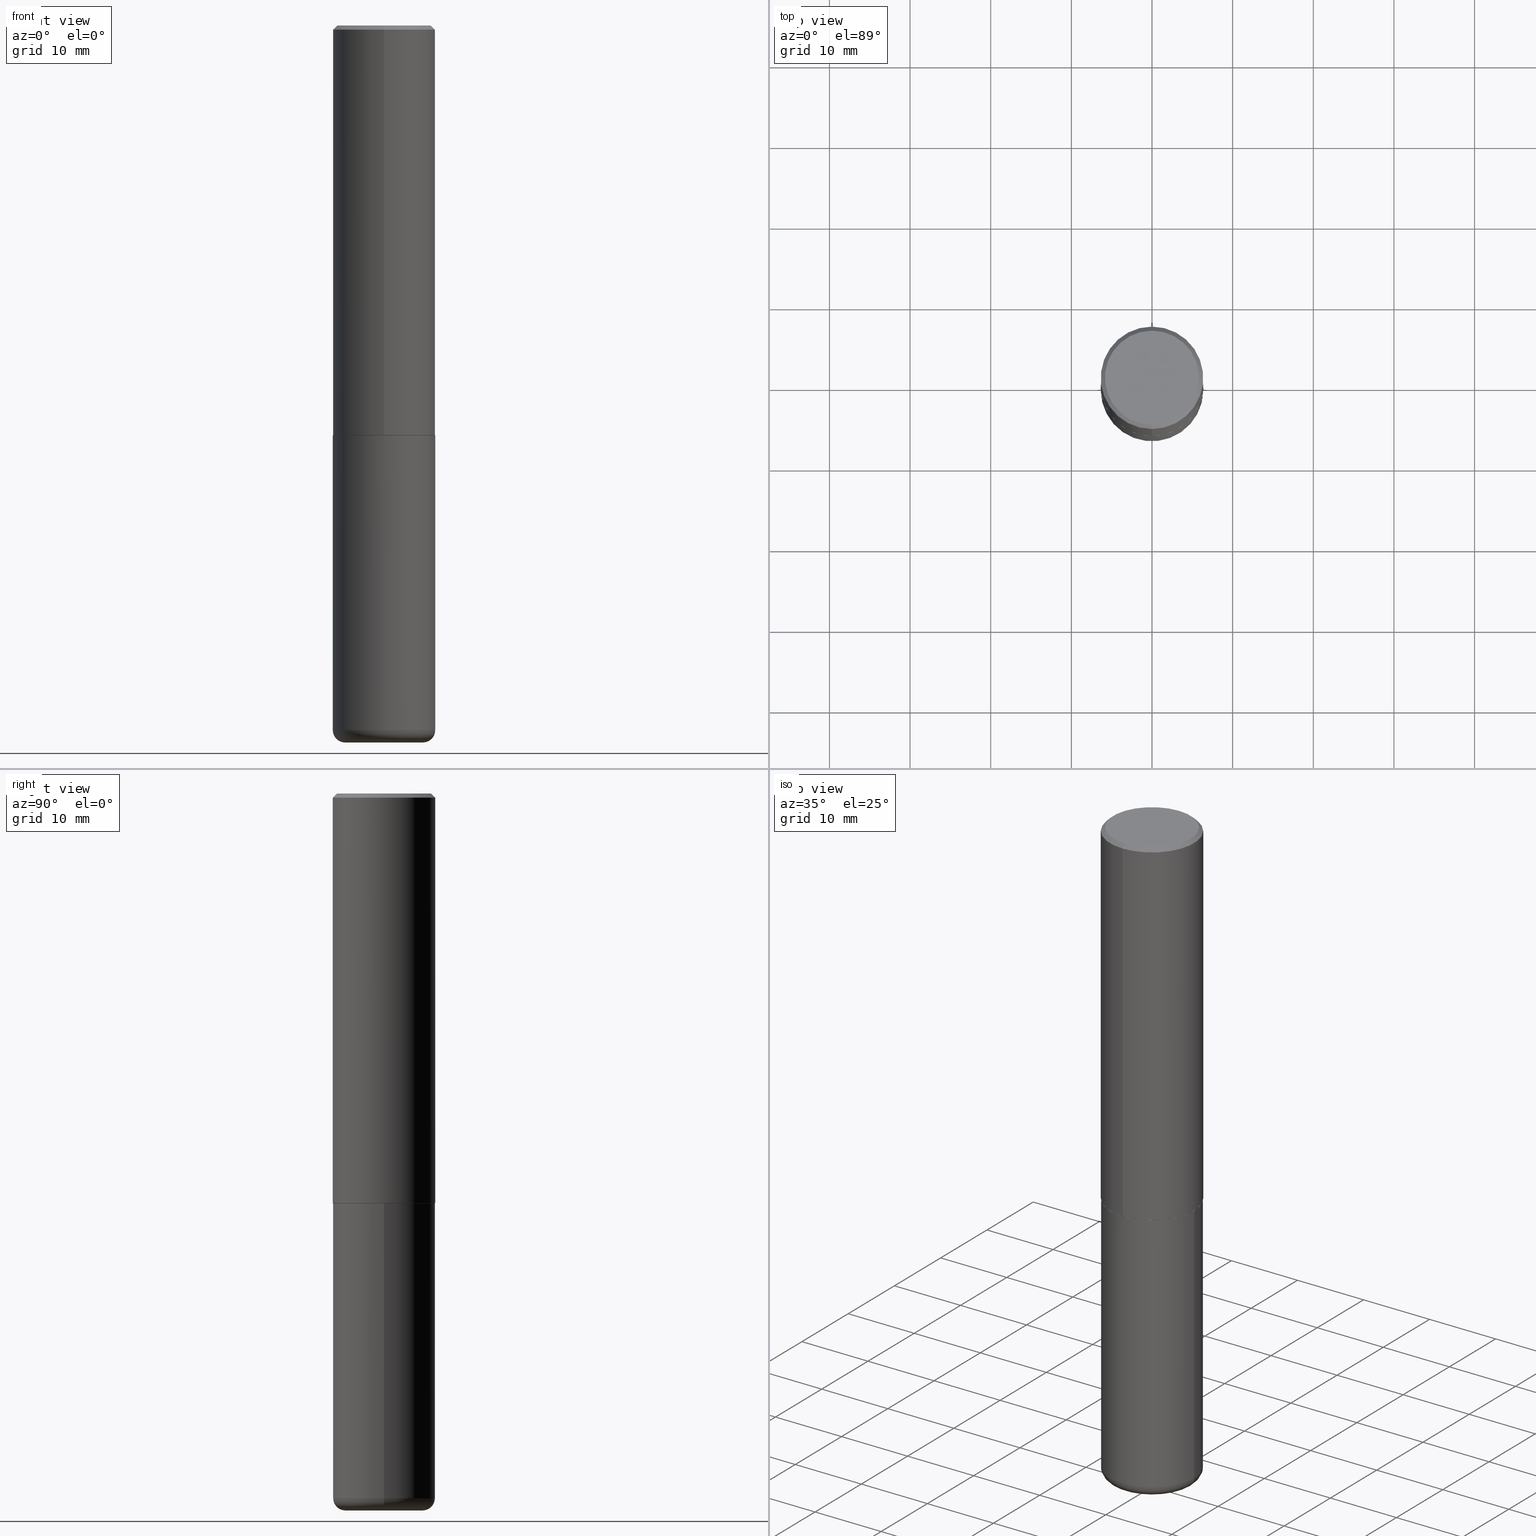
[diagram: canonical four-view strip — front | top / right | iso, engineering-drawing reading convention]
A machine part, canonical four-view strip (front | top / right | iso — engineering-drawing reading convention). The complete STEP part file that produces these views, byte-faithful:
ISO-10303-21;
HEADER;
FILE_DESCRIPTION (( 'STEP AP203' ),
    '1' );
FILE_NAME ('77360.STEP',
    '2024-05-02T19:32:08',
    ( '' ),
    ( '' ),
    'SwSTEP 2.0',
    'SolidWorks 2023',
    '' );
FILE_SCHEMA (( 'CONFIG_CONTROL_DESIGN' ));
ENDSEC;

DATA;
#1 = APPROVAL_PERSON_ORGANIZATION ( #222, #182, #349 ) ;
#2 = DIRECTION ( 'NONE',  ( -2.445468806185136597E-29, 3.491481338843145583E-15, 1.000000000000000000 ) ) ;
#3 = ADVANCED_BREP_SHAPE_REPRESENTATION ( '77360', ( #314, #179, #84 ), #255 ) ;
#4 = PERSON_AND_ORGANIZATION ( #276, #137 ) ;
#5 = AXIS2_PLACEMENT_3D ( 'NONE', #240, #331, #376 ) ;
#6 = DIMENSIONAL_EXPONENTS ( 1.000000000000000000, 0.000000000000000000, 0.000000000000000000, 0.000000000000000000, 0.000000000000000000, 0.000000000000000000, 0.000000000000000000 ) ;
#7 = ORIENTED_EDGE ( 'NONE', *, *, #133, .T. ) ;
#8 = DIRECTION ( 'NONE',  ( -2.445468806185136597E-29, 3.491481338843145583E-15, 1.000000000000000000 ) ) ;
#9 = PLANE ( 'NONE',  #116 ) ;
#10 = DATE_AND_TIME ( #35, #54 ) ;
#11 = CARTESIAN_POINT ( 'NONE',  ( 4.888157982744373443E-31, -6.986943265517335816E-17, -0.02000000000000009062 ) ) ;
#12 = ADVANCED_FACE ( 'NONE', ( #329 ), #46, .T. ) ;
#13 = CIRCLE ( 'NONE', #248, 0.2500000000000002776 ) ;
#14 = VERTEX_POINT ( 'NONE', #40 ) ;
#15 = CARTESIAN_POINT ( 'NONE',  ( 4.888157982744351127E-29, -6.986943265517304311E-15, -2.000000000000000000 ) ) ;
#16 = ORIENTED_EDGE ( 'NONE', *, *, #169, .F. ) ;
#17 = DIRECTION ( 'NONE',  ( -2.444078991372175563E-29, 3.493471632758652550E-15, 1.000000000000000000 ) ) ;
#18 = FACE_OUTER_BOUND ( 'NONE', #100, .T. ) ;
#19 = EDGE_LOOP ( 'NONE', ( #135, #245, #7, #147 ) ) ;
#20 = CARTESIAN_POINT ( 'NONE',  ( 4.885713903752978284E-29, -6.983449793884546288E-15, -1.998999999999999888 ) ) ;
#21 = EDGE_CURVE ( 'NONE', #403, #339, #302, .T. ) ;
#22 = LINE ( 'NONE', #407, #408 ) ;
#23 = CC_DESIGN_APPROVAL ( #281, ( #188 ) ) ;
#24 = AXIS2_PLACEMENT_3D ( 'NONE', #283, #124, #367 ) ;
#25 = CARTESIAN_POINT ( 'NONE',  ( 4.890937612370273194E-29, -6.982962677686291165E-15, -2.000000000000000000 ) ) ;
#26 = CARTESIAN_POINT ( 'NONE',  ( 4.888157982744351127E-29, -6.986943265517304311E-15, -2.000000000000000000 ) ) ;
#27 = DIRECTION ( 'NONE',  ( -2.445468806185136597E-29, 3.491481338843145583E-15, 1.000000000000000000 ) ) ;
#28 = PERSON_AND_ORGANIZATION ( #276, #137 ) ;
#29 = DIRECTION ( 'NONE',  ( -4.937700262165053702E-15, -0.7071067811866175168, 0.7071067811864775177 ) ) ;
#30 = DATE_AND_TIME ( #359, #309 ) ;
#31 = CARTESIAN_POINT ( 'NONE',  ( 8.559140821647976968E-29, -1.222018468595100934E-14, -3.500000000000000000 ) ) ;
#32 = APPROVAL_STATUS ( 'not_yet_approved' ) ;
#33 = AXIS2_PLACEMENT_3D ( 'NONE', #305, #68, #320 ) ;
#34 = DIRECTION ( 'NONE',  ( 1.000000000000000000, -6.982962677686273021E-15, 0.000000000000000000 ) ) ;
#35 = CALENDAR_DATE ( 2024, 2, 5 ) ;
#36 = ADVANCED_FACE ( 'NONE', ( #364 ), #80, .T. ) ;
#37 = AXIS2_PLACEMENT_3D ( 'NONE', #340, #184, #63 ) ;
#38 = ADVANCED_FACE ( 'NONE', ( #127 ), #208, .T. ) ;
#39 = ORIENTED_EDGE ( 'NONE', *, *, #235, .T. ) ;
#40 = CARTESIAN_POINT ( 'NONE',  ( 1.776356839400276103E-15, 0.2499999999999932832, -1.999000000000000776 ) ) ;
#41 = ORIENTED_EDGE ( 'NONE', *, *, #356, .T. ) ;
#42 = DIRECTION ( 'NONE',  ( -2.445468806185136597E-29, 3.491481338843145583E-15, 1.000000000000000000 ) ) ;
#43 = AXIS2_PLACEMENT_3D ( 'NONE', #88, #237, #300 ) ;
#44 = AXIS2_PLACEMENT_3D ( 'NONE', #200, #375, #322 ) ;
#45 = CARTESIAN_POINT ( 'NONE',  ( -0.1899999999999999745, -1.066066460767623105E-14, -3.439999999999999947 ) ) ;
#46 = PLANE ( 'NONE',  #83 ) ;
#47 = ORIENTED_EDGE ( 'NONE', *, *, #293, .T. ) ;
#48 = ORIENTED_EDGE ( 'NONE', *, *, #412, .T. ) ;
#49 = DESIGN_CONTEXT ( 'detailed design', #142, 'design' ) ;
#50 = EDGE_LOOP ( 'NONE', ( #227, #282, #206, #366 ) ) ;
#51 =( LENGTH_UNIT ( ) NAMED_UNIT ( * ) SI_UNIT ( $, .METRE. ) );
#52 = PLANE ( 'NONE',  #43 ) ;
#53 = AXIS2_PLACEMENT_3D ( 'NONE', #396, #42, #190 ) ;
#54 = LOCAL_TIME ( 15, 32, 8.000000000000000000, #224 ) ;
#55 = EDGE_CURVE ( 'NONE', #339, #403, #157, .T. ) ;
#56 = EDGE_LOOP ( 'NONE', ( #393, #154, #317, #214 ) ) ;
#57 = FACE_OUTER_BOUND ( 'NONE', #180, .T. ) ;
#58 = DIRECTION ( 'NONE',  ( -2.444078991372175563E-29, 3.493471632758652550E-15, 1.000000000000000000 ) ) ;
#59 = EDGE_LOOP ( 'NONE', ( #357, #399, #163, #373 ) ) ;
#60 = DIRECTION ( 'NONE',  ( -6.982962677686265922E-15, -1.000000000000000000, 3.278217592397112312E-15 ) ) ;
#61 = DIRECTION ( 'NONE',  ( -2.444078991372175563E-29, 3.493471632758652550E-15, 1.000000000000000000 ) ) ;
#62 = ADVANCED_FACE ( 'NONE', ( #387 ), #341, .T. ) ;
#63 = DIRECTION ( 'NONE',  ( 1.000000000000000000, -6.982962677686274599E-15, 0.000000000000000000 ) ) ;
#64 = DIRECTION ( 'NONE',  ( 1.000000000000000000, -6.982962677686265133E-15, 4.883557194083112340E-29 ) ) ;
#65 = CC_DESIGN_APPROVAL ( #182, ( #368 ) ) ;
#66 = APPROVAL_PERSON_ORGANIZATION ( #73, #281, #416 ) ;
#67 = ORIENTED_EDGE ( 'NONE', *, *, #133, .F. ) ;
#68 = DIRECTION ( 'NONE',  ( -2.444078991372175563E-29, 3.493471632758652550E-15, 1.000000000000000000 ) ) ;
#69 = EDGE_CURVE ( 'NONE', #139, #110, #390, .T. ) ;
#70 = APPROVAL_STATUS ( 'not_yet_approved' ) ;
#71 = APPLICATION_PROTOCOL_DEFINITION ( 'international standard', 'config_control_design', 1994, #142 ) ;
#72 = CARTESIAN_POINT ( 'NONE',  ( 0.000000000000000000, 0.000000000000000000, 0.000000000000000000 ) ) ;
#73 = PERSON_AND_ORGANIZATION ( #276, #137 ) ;
#74 = PERSON_AND_ORGANIZATION_ROLE ( 'creator' ) ;
#75 = ORIENTED_EDGE ( 'NONE', *, *, #175, .F. ) ;
#76 = AXIS2_PLACEMENT_3D ( 'NONE', #381, #209, #277 ) ;
#77 = ADVANCED_FACE ( 'NONE', ( #221 ), #334, .T. ) ;
#78 = CC_DESIGN_PERSON_AND_ORGANIZATION_ASSIGNMENT ( #4, #287, ( #136 ) ) ;
#79 = DIRECTION ( 'NONE',  ( 1.000000000000000000, -6.982962677686273021E-15, 0.000000000000000000 ) ) ;
#80 = CYLINDRICAL_SURFACE ( 'NONE', #44, 0.2500000000000000000 ) ;
#81 = DIRECTION ( 'NONE',  ( 2.444078991372175563E-29, -3.493471632758652550E-15, -1.000000000000000000 ) ) ;
#82 = CIRCLE ( 'NONE', #37, 0.05999999999999994227 ) ;
#83 = AXIS2_PLACEMENT_3D ( 'NONE', #177, #392, #394 ) ;
#84 = AXIS2_PLACEMENT_3D ( 'NONE', #284, #278, #99 ) ;
#85 = DIRECTION ( 'NONE',  ( 1.000000000000000000, -6.982962677686266711E-15, 4.876176775795935793E-29 ) ) ;
#86 = CARTESIAN_POINT ( 'NONE',  ( -7.626972843823584403E-45, 1.090169890898625670E-30, 3.120591793778966343E-16 ) ) ;
#87 = CARTESIAN_POINT ( 'NONE',  ( 1.675911042644703182E-15, 0.2299999999999997047, -4.914392961565924424E-16 ) ) ;
#88 = CARTESIAN_POINT ( 'NONE',  ( 4.888157982744351127E-29, -6.986943265517304311E-15, -2.000000000000000000 ) ) ;
#89 = LINE ( 'NONE', #153, #174 ) ;
#90 = ORIENTED_EDGE ( 'NONE', *, *, #55, .T. ) ;
#91 = DIRECTION ( 'NONE',  ( -2.444078991372175563E-29, 3.493471632758652550E-15, 1.000000000000000000 ) ) ;
#92 = DIRECTION ( 'NONE',  ( -6.982962677686265133E-15, -1.000000000000000000, 3.291383124896702687E-15 ) ) ;
#93 = PERSON_AND_ORGANIZATION_ROLE ( 'classification_officer' ) ;
#94 = ORIENTED_EDGE ( 'NONE', *, *, #201, .T. ) ;
#95 = CARTESIAN_POINT ( 'NONE',  ( -0.2499999999999999722, -1.023433896622016898E-14, -3.439999999999999947 ) ) ;
#96 = CIRCLE ( 'NONE', #354, 0.2489999999999999991 ) ;
#97 = EDGE_CURVE ( 'NONE', #290, #204, #350, .T. ) ;
#98 = DATE_AND_TIME ( #316, #253 ) ;
#99 = DIRECTION ( 'NONE',  ( 1.000000000000000000, 0.000000000000000000, 0.000000000000000000 ) ) ;
#100 = EDGE_LOOP ( 'NONE', ( #258, #90, #296, #417 ) ) ;
#101 = DIRECTION ( 'NONE',  ( 1.000000000000000000, -6.982962677686270655E-15, 0.000000000000000000 ) ) ;
#102 = LENGTH_MEASURE_WITH_UNIT ( LENGTH_MEASURE( 0.02539999999999999897 ), #51 );
#103 = CARTESIAN_POINT ( 'NONE',  ( 8.412412693276869938E-29, -1.201069580562042103E-14, -3.439999999999999947 ) ) ;
#104 = AXIS2_PLACEMENT_3D ( 'NONE', #86, #17, #152 ) ;
#105 = CALENDAR_DATE ( 2024, 2, 5 ) ;
#106 = AXIS2_PLACEMENT_3D ( 'NONE', #15, #155, #149 ) ;
#107 = ORIENTED_EDGE ( 'NONE', *, *, #97, .T. ) ;
#108 = DIRECTION ( 'NONE',  ( -2.444078991372175563E-29, 3.493471632758652550E-15, 1.000000000000000000 ) ) ;
#109 = PRODUCT_DEFINITION_SHAPE ( 'NONE', 'NONE',  #188 ) ;
#110 = VERTEX_POINT ( 'NONE', #318 ) ;
#111 = ORIENTED_EDGE ( 'NONE', *, *, #55, .F. ) ;
#112 = AXIS2_PLACEMENT_3D ( 'NONE', #346, #61, #187 ) ;
#113 = VERTEX_POINT ( 'NONE', #164 ) ;
#114 = LINE ( 'NONE', #115, #275 ) ;
#115 = CARTESIAN_POINT ( 'NONE',  ( 1.745740669421567269E-15, 0.2499999999999999722, -0.02000000000000096492 ) ) ;
#116 = AXIS2_PLACEMENT_3D ( 'NONE', #126, #246, #212 ) ;
#117 = AXIS2_PLACEMENT_3D ( 'NONE', #72, #108, #257 ) ;
#118 = DIRECTION ( 'NONE',  ( -2.444078991372175563E-29, 3.493471632758652550E-15, 1.000000000000000000 ) ) ;
#119 = EDGE_CURVE ( 'NONE', #110, #139, #203, .T. ) ;
#120 = EDGE_CURVE ( 'NONE', #251, #345, #254, .T. ) ;
#121 = DIRECTION ( 'NONE',  ( 1.000000000000000000, -6.982962677686266711E-15, 0.000000000000000000 ) ) ;
#122 = DIRECTION ( 'NONE',  ( -6.982962677686266711E-15, -1.000000000000000000, 3.493471632758652550E-15 ) ) ;
#123 = CARTESIAN_POINT ( 'NONE',  ( 4.890937612370273194E-29, -6.982962677686291165E-15, -2.000000000000000000 ) ) ;
#124 = DIRECTION ( 'NONE',  ( -2.445468806185136597E-29, 3.491481338843145583E-15, 1.000000000000000000 ) ) ;
#125 = APPROVAL_ROLE ( '' ) ;
#126 = CARTESIAN_POINT ( 'NONE',  ( 1.606081415867839095E-15, 0.2299999999999997047, -6.474688858455407103E-16 ) ) ;
#127 = FACE_OUTER_BOUND ( 'NONE', #410, .T. ) ;
#128 = DATE_TIME_ROLE ( 'creation_date' ) ;
#129 =( CONVERSION_BASED_UNIT ( 'INCH', #102 ) LENGTH_UNIT ( ) NAMED_UNIT ( #6 ) );
#130 = CARTESIAN_POINT ( 'NONE',  ( 8.412412693276869938E-29, -1.201069580562042103E-14, -3.439999999999999947 ) ) ;
#131 = COORDINATED_UNIVERSAL_TIME_OFFSET ( 5, 0, .BEHIND. ) ;
#132 = ADVANCED_FACE ( 'NONE', ( #229 ), #347, .T. ) ;
#133 = EDGE_CURVE ( 'NONE', #220, #345, #114, .T. ) ;
#134 = CALENDAR_DATE ( 2024, 2, 5 ) ;
#135 = ORIENTED_EDGE ( 'NONE', *, *, #356, .F. ) ;
#136 = PRODUCT_DEFINITION_FORMATION_WITH_SPECIFIED_SOURCE ( 'ANY', '', #336, .NOT_KNOWN. ) ;
#137 = ORGANIZATION ( 'UNSPECIFIED', 'UNSPECIFIED', '' ) ;
#138 = CC_DESIGN_DATE_AND_TIME_ASSIGNMENT ( #30, #128, ( #188 ) ) ;
#139 = VERTEX_POINT ( 'NONE', #95 ) ;
#140 = ORIENTED_EDGE ( 'NONE', *, *, #191, .F. ) ;
#141 = AXIS2_PLACEMENT_3D ( 'NONE', #103, #384, #161 ) ;
#142 = APPLICATION_CONTEXT ( 'configuration controlled 3d designs of mechanical parts and assemblies' ) ;
#143 = FACE_OUTER_BOUND ( 'NONE', #165, .T. ) ;
#144 = ADVANCED_FACE ( 'NONE', ( #145 ), #171, .T. ) ;
#145 = FACE_OUTER_BOUND ( 'NONE', #210, .T. ) ;
#146 = VECTOR ( 'NONE', #310, 39.37007874015748143 ) ;
#147 = ORIENTED_EDGE ( 'NONE', *, *, #150, .T. ) ;
#148 = CARTESIAN_POINT ( 'NONE',  ( -0.2500000000000000000, 1.776356839400250465E-15, -1.229733772563726445E-29 ) ) ;
#149 = DIRECTION ( 'NONE',  ( -6.982962677686265133E-15, -1.000000000000000000, 3.291383124896702687E-15 ) ) ;
#150 = EDGE_CURVE ( 'NONE', #345, #251, #301, .T. ) ;
#151 = ORIENTED_EDGE ( 'NONE', *, *, #191, .T. ) ;
#152 = DIRECTION ( 'NONE',  ( -6.982962677686265922E-15, -1.000000000000000000, 3.493471632758652550E-15 ) ) ;
#153 = CARTESIAN_POINT ( 'NONE',  ( 1.769251412042697971E-15, 0.2489999999999930047, -2.000000000000000888 ) ) ;
#154 = ORIENTED_EDGE ( 'NONE', *, *, #199, .T. ) ;
#155 = DIRECTION ( 'NONE',  ( -2.444078991372175563E-29, 3.493471632758652550E-15, 1.000000000000000000 ) ) ;
#156 = DIRECTION ( 'NONE',  ( -2.444078991372175563E-29, 3.493471632758652550E-15, 1.000000000000000000 ) ) ;
#157 = CIRCLE ( 'NONE', #259, 0.1899999999999999745 ) ;
#158 = CC_DESIGN_PERSON_AND_ORGANIZATION_ASSIGNMENT ( #352, #218, ( #336 ) ) ;
#159 = CYLINDRICAL_SURFACE ( 'NONE', #335, 0.2500000000000000000 ) ;
#160 = CARTESIAN_POINT ( 'NONE',  ( -1.745740669421567467E-15, -0.2500000000000001110, 8.733679081896635319E-16 ) ) ;
#161 = DIRECTION ( 'NONE',  ( 1.000000000000000000, -6.982962677686265133E-15, 4.883557194083112340E-29 ) ) ;
#162 = SECURITY_CLASSIFICATION_LEVEL ( 'unclassified' ) ;
#163 = ORIENTED_EDGE ( 'NONE', *, *, #201, .F. ) ;
#164 = CARTESIAN_POINT ( 'NONE',  ( -0.2500000000000000000, -7.720472402253106025E-15, -2.000000000000000000 ) ) ;
#165 = EDGE_LOOP ( 'NONE', ( #263, #228, #39, #272 ) ) ;
#166 = DATE_AND_TIME ( #134, #398 ) ;
#167 = ORIENTED_EDGE ( 'NONE', *, *, #21, .F. ) ;
#168 =( NAMED_UNIT ( * ) PLANE_ANGLE_UNIT ( ) SI_UNIT ( $, .RADIAN. ) );
#169 = EDGE_CURVE ( 'NONE', #196, #290, #217, .T. ) ;
#170 = APPROVAL_DATE_TIME ( #10, #182 ) ;
#171 = CONICAL_SURFACE ( 'NONE', #348, 0.2500000000000000555, 0.7853981633974466137 ) ;
#172 = EDGE_LOOP ( 'NONE', ( #75, #16 ) ) ;
#173 = DIRECTION ( 'NONE',  ( -2.445468806185136597E-29, 3.491481338843145583E-15, 1.000000000000000000 ) ) ;
#174 = VECTOR ( 'NONE', #176, 39.37007874015748143 ) ;
#175 = EDGE_CURVE ( 'NONE', #290, #196, #96, .T. ) ;
#176 = DIRECTION ( 'NONE',  ( 5.024295867788576727E-15, 0.7071067811866224018, 0.7071067811864726327 ) ) ;
#177 = CARTESIAN_POINT ( 'NONE',  ( 8.559140821647976968E-29, -1.222018468595100934E-14, -3.500000000000000000 ) ) ;
#178 = ORIENTED_EDGE ( 'NONE', *, *, #230, .F. ) ;
#179 = MANIFOLD_SOLID_BREP ( 'Body-Move/Copy2[2]', #226 ) ;
#180 = EDGE_LOOP ( 'NONE', ( #264, #232, #299, #326 ) ) ;
#181 = VECTOR ( 'NONE', #268, 39.37007874015748143 ) ;
#182 = APPROVAL ( #355, 'UNSPECIFIED' ) ;
#183 = CARTESIAN_POINT ( 'NONE',  ( -1.646519519465166376E-15, -0.2299999999999997047, 1.115557654912385711E-15 ) ) ;
#184 = DIRECTION ( 'NONE',  ( -6.982962677686266711E-15, -1.000000000000000000, 3.491481338843145583E-15 ) ) ;
#185 = DIRECTION ( 'NONE',  ( -2.444078991372175563E-29, 3.493471632758652550E-15, 1.000000000000000000 ) ) ;
#186 = CARTESIAN_POINT ( 'NONE',  ( 1.745740669421567269E-15, 0.2499999999999999722, -0.02000000000000096492 ) ) ;
#187 = DIRECTION ( 'NONE',  ( -6.982962677686265922E-15, -1.000000000000000000, 3.278217592397112312E-15 ) ) ;
#188 = PRODUCT_DEFINITION ( 'UNKNOWN', '', #136, #49 ) ;
#189 = VECTOR ( 'NONE', #91, 39.37007874015748143 ) ;
#190 = DIRECTION ( 'NONE',  ( 1.000000000000000000, -6.982962677686266711E-15, 0.000000000000000000 ) ) ;
#191 = EDGE_CURVE ( 'NONE', #372, #220, #388, .T. ) ;
#192 = APPLICATION_PROTOCOL_DEFINITION ( 'international standard', 'config_control_design', 1994, #256 ) ;
#193 = CARTESIAN_POINT ( 'NONE',  ( -1.738757706743831360E-15, -0.2490000000000069935, -1.999999999999999112 ) ) ;
#194 = APPROVAL_DATE_TIME ( #98, #281 ) ;
#195 = APPROVAL_DATE_TIME ( #166, #241 ) ;
#196 = VERTEX_POINT ( 'NONE', #261 ) ;
#197 = VECTOR ( 'NONE', #211, 39.37007874015748854 ) ;
#198 = ORIENTED_EDGE ( 'NONE', *, *, #120, .F. ) ;
#199 = EDGE_CURVE ( 'NONE', #339, #139, #311, .T. ) ;
#200 = CARTESIAN_POINT ( 'NONE',  ( 0.000000000000000000, 0.000000000000000000, 0.000000000000000000 ) ) ;
#201 = EDGE_CURVE ( 'NONE', #337, #113, #231, .T. ) ;
#202 = DIRECTION ( 'NONE',  ( 6.982962677686265133E-15, 1.000000000000000000, -3.500180241882336472E-15 ) ) ;
#203 = CIRCLE ( 'NONE', #24, 0.2500000000000000000 ) ;
#204 = VERTEX_POINT ( 'NONE', #312 ) ;
#205 = CC_DESIGN_PERSON_AND_ORGANIZATION_ASSIGNMENT ( #351, #93, ( #368 ) ) ;
#206 = ORIENTED_EDGE ( 'NONE', *, *, #239, .T. ) ;
#207 = DIRECTION ( 'NONE',  ( -1.000000000000000000, 6.982962677686265922E-15, -4.876176775795935793E-29 ) ) ;
#208 = CONICAL_SURFACE ( 'NONE', #33, 0.2489999999999999991, 0.7853981633975507526 ) ;
#209 = DIRECTION ( 'NONE',  ( -2.444078991372175563E-29, 3.493471632758652550E-15, 1.000000000000000000 ) ) ;
#210 = EDGE_LOOP ( 'NONE', ( #140, #41, #380, #67 ) ) ;
#211 = DIRECTION ( 'NONE',  ( -4.851104656540954809E-15, -0.7071067811865486830, -0.7071067811865462405 ) ) ;
#212 = DIRECTION ( 'NONE',  ( 6.982962677686265922E-15, 1.000000000000000000, -3.493471632758652550E-15 ) ) ;
#213 = ADVANCED_FACE ( 'NONE', ( #18 ), #361, .T. ) ;
#214 = ORIENTED_EDGE ( 'NONE', *, *, #323, .F. ) ;
#215 = DIRECTION ( 'NONE',  ( 2.438088387897960049E-29, -3.491481338843145188E-15, -1.000000000000000000 ) ) ;
#216 = LINE ( 'NONE', #160, #181 ) ;
#217 = CIRCLE ( 'NONE', #5, 0.2489999999999999991 ) ;
#218 = PERSON_AND_ORGANIZATION_ROLE ( 'design_owner' ) ;
#219 = MECHANICAL_CONTEXT ( 'NONE', #256, 'mechanical' ) ;
#220 = VERTEX_POINT ( 'NONE', #87 ) ;
#221 = FACE_OUTER_BOUND ( 'NONE', #19, .T. ) ;
#222 = PERSON_AND_ORGANIZATION ( #276, #137 ) ;
#223 = AXIS2_PLACEMENT_3D ( 'NONE', #123, #404, #121 ) ;
#224 = COORDINATED_UNIVERSAL_TIME_OFFSET ( 5, 0, .BEHIND. ) ;
#225 = AXIS2_PLACEMENT_3D ( 'NONE', #333, #185, #243 ) ;
#226 = CLOSED_SHELL ( 'NONE', ( #402, #132, #144, #77, #285, #38, #342, #269 ) ) ;
#227 = ORIENTED_EDGE ( 'NONE', *, *, #298, .F. ) ;
#228 = ORIENTED_EDGE ( 'NONE', *, *, #270, .T. ) ;
#229 = FACE_OUTER_BOUND ( 'NONE', #389, .T. ) ;
#230 = EDGE_CURVE ( 'NONE', #196, #14, #89, .T. ) ;
#231 = CIRCLE ( 'NONE', #53, 0.2500000000000000000 ) ;
#232 = ORIENTED_EDGE ( 'NONE', *, *, #230, .T. ) ;
#233 = FACE_OUTER_BOUND ( 'NONE', #50, .T. ) ;
#234 = CIRCLE ( 'NONE', #104, 0.2299999999999997047 ) ;
#235 = EDGE_CURVE ( 'NONE', #204, #251, #216, .T. ) ;
#236 = ORIENTED_EDGE ( 'NONE', *, *, #169, .T. ) ;
#237 = DIRECTION ( 'NONE',  ( -2.444078991372175283E-29, 3.493471632758652550E-15, 1.000000000000000000 ) ) ;
#238 = EDGE_LOOP ( 'NONE', ( #94, #386 ) ) ;
#239 = EDGE_CURVE ( 'NONE', #110, #337, #22, .T. ) ;
#240 = CARTESIAN_POINT ( 'NONE',  ( 4.888157982744351127E-29, -6.986943265517304311E-15, -2.000000000000000000 ) ) ;
#241 = APPROVAL ( #70, 'UNSPECIFIED' ) ;
#242 = LINE ( 'NONE', #401, #197 ) ;
#243 = DIRECTION ( 'NONE',  ( -6.982962677686265133E-15, -1.000000000000000000, 3.500180241882336472E-15 ) ) ;
#244 =( NAMED_UNIT ( * ) SI_UNIT ( $, .STERADIAN. ) SOLID_ANGLE_UNIT ( ) );
#245 = ORIENTED_EDGE ( 'NONE', *, *, #293, .F. ) ;
#246 = DIRECTION ( 'NONE',  ( 2.444078991372175283E-29, -3.493471632758652550E-15, -1.000000000000000000 ) ) ;
#247 = DIRECTION ( 'NONE',  ( 2.444078991372175563E-29, -3.493471632758652550E-15, -1.000000000000000000 ) ) ;
#248 = AXIS2_PLACEMENT_3D ( 'NONE', #20, #118, #60 ) ;
#249 = CC_DESIGN_DATE_AND_TIME_ASSIGNMENT ( #250, #385, ( #368 ) ) ;
#250 = DATE_AND_TIME ( #105, #409 ) ;
#251 = VERTEX_POINT ( 'NONE', #295 ) ;
#252 = PERSON_AND_ORGANIZATION_ROLE ( 'creator' ) ;
#253 = LOCAL_TIME ( 15, 32, 8.000000000000000000, #414 ) ;
#254 = CIRCLE ( 'NONE', #370, 0.2500000000000000555 ) ;
#255 =( GEOMETRIC_REPRESENTATION_CONTEXT ( 3 ) GLOBAL_UNCERTAINTY_ASSIGNED_CONTEXT ( ( #262 ) ) GLOBAL_UNIT_ASSIGNED_CONTEXT ( ( #129, #168, #244 ) ) REPRESENTATION_CONTEXT ( 'NONE', 'WORKASPACE' ) );
#256 = APPLICATION_CONTEXT ( 'configuration controlled 3d designs of mechanical parts and assemblies' ) ;
#257 = DIRECTION ( 'NONE',  ( -6.982962677686266711E-15, -1.000000000000000000, 3.493471632758652550E-15 ) ) ;
#258 = ORIENTED_EDGE ( 'NONE', *, *, #199, .F. ) ;
#259 = AXIS2_PLACEMENT_3D ( 'NONE', #31, #2, #34 ) ;
#260 = CYLINDRICAL_SURFACE ( 'NONE', #117, 0.2500000000000001110 ) ;
#261 = CARTESIAN_POINT ( 'NONE',  ( 1.772804125721499462E-15, 0.2489999999999930047, -2.000000000000000888 ) ) ;
#262 = UNCERTAINTY_MEASURE_WITH_UNIT (LENGTH_MEASURE( 1.000000000000000082E-05 ), #129, 'distance_accuracy_value', 'NONE');
#263 = ORIENTED_EDGE ( 'NONE', *, *, #412, .F. ) ;
#264 = ORIENTED_EDGE ( 'NONE', *, *, #175, .T. ) ;
#265 = AXIS2_PLACEMENT_3D ( 'NONE', #378, #58, #122 ) ;
#266 = FACE_OUTER_BOUND ( 'NONE', #238, .T. ) ;
#267 = FACE_OUTER_BOUND ( 'NONE', #172, .T. ) ;
#268 = DIRECTION ( 'NONE',  ( -2.444078991372175563E-29, 3.493471632758652550E-15, 1.000000000000000000 ) ) ;
#269 = ADVANCED_FACE ( 'NONE', ( #415 ), #9, .F. ) ;
#270 = EDGE_CURVE ( 'NONE', #14, #204, #286, .T. ) ;
#271 = CIRCLE ( 'NONE', #223, 0.2500000000000000000 ) ;
#272 = ORIENTED_EDGE ( 'NONE', *, *, #150, .F. ) ;
#273 = CARTESIAN_POINT ( 'NONE',  ( 0.1899999999999999745, -1.354694759471140096E-14, -3.500000000000000000 ) ) ;
#274 = VECTOR ( 'NONE', #29, 39.37007874015748143 ) ;
#275 = VECTOR ( 'NONE', #395, 39.37007874015748854 ) ;
#276 = PERSON ( 'UNSPECIFIED', 'UNSPECIFIED', 'UNSPECIFIED', ('UNSPECIFIED'), ('UNSPECIFIED'), ('UNSPECIFIED') ) ;
#277 = DIRECTION ( 'NONE',  ( -6.982962677686265922E-15, -1.000000000000000000, 3.493471632758652550E-15 ) ) ;
#278 = DIRECTION ( 'NONE',  ( 0.000000000000000000, 0.000000000000000000, 1.000000000000000000 ) ) ;
#279 = ORIENTED_EDGE ( 'NONE', *, *, #235, .F. ) ;
#280 = DIRECTION ( 'NONE',  ( -6.982962677686265133E-15, -1.000000000000000000, 3.500180241882336472E-15 ) ) ;
#281 = APPROVAL ( #32, 'UNSPECIFIED' ) ;
#282 = ORIENTED_EDGE ( 'NONE', *, *, #69, .T. ) ;
#283 = CARTESIAN_POINT ( 'NONE',  ( 8.412412693276869938E-29, -1.201069580562042103E-14, -3.439999999999999947 ) ) ;
#284 = CARTESIAN_POINT ( 'NONE',  ( 0.000000000000000000, 0.000000000000000000, 0.000000000000000000 ) ) ;
#285 = ADVANCED_FACE ( 'NONE', ( #143 ), #260, .T. ) ;
#286 = CIRCLE ( 'NONE', #112, 0.2500000000000002776 ) ;
#287 = PERSON_AND_ORGANIZATION_ROLE ( 'design_supplier' ) ;
#288 = CC_DESIGN_APPROVAL ( #241, ( #136 ) ) ;
#289 = APPROVAL_PERSON_ORGANIZATION ( #28, #241, #125 ) ;
#290 = VERTEX_POINT ( 'NONE', #304 ) ;
#291 = CARTESIAN_POINT ( 'NONE',  ( 8.559140821647976968E-29, -1.222018468595100934E-14, -3.500000000000000000 ) ) ;
#292 = PRODUCT_RELATED_PRODUCT_CATEGORY ( 'detail', '', ( #336 ) ) ;
#293 = EDGE_CURVE ( 'NONE', #220, #372, #234, .T. ) ;
#294 = CC_DESIGN_SECURITY_CLASSIFICATION ( #368, ( #136 ) ) ;
#295 = CARTESIAN_POINT ( 'NONE',  ( -1.715124499442882496E-15, -0.2500000000000001110, -0.01999999999999921632 ) ) ;
#296 = ORIENTED_EDGE ( 'NONE', *, *, #323, .T. ) ;
#297 = DIRECTION ( 'NONE',  ( -2.445468806185136877E-29, 3.491481338843145188E-15, 1.000000000000000000 ) ) ;
#298 = EDGE_CURVE ( 'NONE', #139, #113, #406, .T. ) ;
#299 = ORIENTED_EDGE ( 'NONE', *, *, #383, .F. ) ;
#300 = DIRECTION ( 'NONE',  ( -6.982962677686265922E-15, -1.000000000000000000, 3.493471632758652550E-15 ) ) ;
#301 = CIRCLE ( 'NONE', #225, 0.2500000000000000555 ) ;
#302 = CIRCLE ( 'NONE', #321, 0.1899999999999999745 ) ;
#303 = EDGE_LOOP ( 'NONE', ( #167, #111 ) ) ;
#304 = CARTESIAN_POINT ( 'NONE',  ( -1.738757706743831360E-15, -0.2490000000000069935, -1.999999999999999112 ) ) ;
#305 = CARTESIAN_POINT ( 'NONE',  ( 4.888157982744351127E-29, -6.986943265517304311E-15, -2.000000000000000000 ) ) ;
#306 = DIRECTION ( 'NONE',  ( -1.000000000000000000, 7.105427357600997914E-15, 0.000000000000000000 ) ) ;
#307 = LINE ( 'NONE', #377, #189 ) ;
#308 = CARTESIAN_POINT ( 'NONE',  ( 4.888157982744373443E-31, -6.986943265517335816E-17, -0.02000000000000009062 ) ) ;
#309 = LOCAL_TIME ( 15, 32, 8.000000000000000000, #319 ) ;
#310 = DIRECTION ( 'NONE',  ( -2.445468806185136877E-29, 3.491481338843145188E-15, 1.000000000000000000 ) ) ;
#311 = CIRCLE ( 'NONE', #332, 0.05999999999999994227 ) ;
#312 = CARTESIAN_POINT ( 'NONE',  ( -1.745740669421519543E-15, -0.2500000000000072720, -1.998999999999999000 ) ) ;
#313 = EDGE_CURVE ( 'NONE', #113, #337, #271, .T. ) ;
#314 = MANIFOLD_SOLID_BREP ( 'Body-Move/Copy2[1]', #362 ) ;
#315 = ADVANCED_FACE ( 'NONE', ( #266 ), #343, .F. ) ;
#316 = CALENDAR_DATE ( 2024, 2, 5 ) ;
#317 = ORIENTED_EDGE ( 'NONE', *, *, #119, .F. ) ;
#318 = CARTESIAN_POINT ( 'NONE',  ( 0.2499999999999999722, -1.375643647504198770E-14, -3.439999999999999947 ) ) ;
#319 = COORDINATED_UNIVERSAL_TIME_OFFSET ( 5, 0, .BEHIND. ) ;
#320 = DIRECTION ( 'NONE',  ( -6.982962677686265133E-15, -1.000000000000000000, 3.291383124896702687E-15 ) ) ;
#321 = AXIS2_PLACEMENT_3D ( 'NONE', #291, #8, #79 ) ;
#322 = DIRECTION ( 'NONE',  ( 1.000000000000000000, -6.982962677686266711E-15, 4.876176775795935793E-29 ) ) ;
#323 = EDGE_CURVE ( 'NONE', #403, #110, #82, .T. ) ;
#324 = PERSON_AND_ORGANIZATION ( #276, #137 ) ;
#325 = PERSON_AND_ORGANIZATION ( #276, #137 ) ;
#326 = ORIENTED_EDGE ( 'NONE', *, *, #97, .F. ) ;
#327 = AXIS2_PLACEMENT_3D ( 'NONE', #369, #173, #64 ) ;
#328 = CC_DESIGN_PERSON_AND_ORGANIZATION_ASSIGNMENT ( #324, #74, ( #188 ) ) ;
#329 = FACE_OUTER_BOUND ( 'NONE', #303, .T. ) ;
#330 = ORIENTED_EDGE ( 'NONE', *, *, #270, .F. ) ;
#331 = DIRECTION ( 'NONE',  ( -2.444078991372175563E-29, 3.493471632758652550E-15, 1.000000000000000000 ) ) ;
#332 = AXIS2_PLACEMENT_3D ( 'NONE', #45, #344, #306 ) ;
#333 = CARTESIAN_POINT ( 'NONE',  ( 4.888157982744373443E-31, -6.986943265517335816E-17, -0.02000000000000009062 ) ) ;
#334 = CONICAL_SURFACE ( 'NONE', #400, 0.2500000000000000555, 0.7853981633974466137 ) ;
#335 = AXIS2_PLACEMENT_3D ( 'NONE', #397, #371, #85 ) ;
#336 = PRODUCT ( '77360', '77360', '', ( #219 ) ) ;
#337 = VERTEX_POINT ( 'NONE', #374 ) ;
#338 = CARTESIAN_POINT ( 'NONE',  ( -0.1899999999999999745, -1.055224622711349575E-14, -3.500000000000000000 ) ) ;
#339 = VERTEX_POINT ( 'NONE', #338 ) ;
#340 = CARTESIAN_POINT ( 'NONE',  ( 0.1899999999999999745, -1.333745871438081265E-14, -3.439999999999999947 ) ) ;
#341 = TOROIDAL_SURFACE ( 'NONE', #141, 0.1899999999999999745, 0.05999999999999995615 ) ;
#342 = ADVANCED_FACE ( 'NONE', ( #267 ), #52, .F. ) ;
#343 = PLANE ( 'NONE',  #382 ) ;
#344 = DIRECTION ( 'NONE',  ( 7.105427357601001859E-15, 1.000000000000000000, -3.491481338843145583E-15 ) ) ;
#345 = VERTEX_POINT ( 'NONE', #186 ) ;
#346 = CARTESIAN_POINT ( 'NONE',  ( 4.885713903752978284E-29, -6.983449793884546288E-15, -1.998999999999999888 ) ) ;
#347 = CYLINDRICAL_SURFACE ( 'NONE', #265, 0.2500000000000001110 ) ;
#348 = AXIS2_PLACEMENT_3D ( 'NONE', #308, #81, #202 ) ;
#349 = APPROVAL_ROLE ( '' ) ;
#350 = LINE ( 'NONE', #193, #274 ) ;
#351 = PERSON_AND_ORGANIZATION ( #276, #137 ) ;
#352 = PERSON_AND_ORGANIZATION ( #276, #137 ) ;
#353 = DIRECTION ( 'NONE',  ( 6.982962677686265133E-15, 1.000000000000000000, -3.500180241882336472E-15 ) ) ;
#354 = AXIS2_PLACEMENT_3D ( 'NONE', #26, #411, #92 ) ;
#355 = APPROVAL_STATUS ( 'not_yet_approved' ) ;
#356 = EDGE_CURVE ( 'NONE', #372, #251, #242, .T. ) ;
#357 = ORIENTED_EDGE ( 'NONE', *, *, #119, .T. ) ;
#358 = AXIS2_PLACEMENT_3D ( 'NONE', #130, #27, #101 ) ;
#359 = CALENDAR_DATE ( 2024, 2, 5 ) ;
#360 = CC_DESIGN_PERSON_AND_ORGANIZATION_ASSIGNMENT ( #325, #252, ( #136 ) ) ;
#361 = TOROIDAL_SURFACE ( 'NONE', #327, 0.1899999999999999745, 0.05999999999999995615 ) ;
#362 = CLOSED_SHELL ( 'NONE', ( #36, #62, #315, #413, #213, #12 ) ) ;
#363 = ORIENTED_EDGE ( 'NONE', *, *, #383, .T. ) ;
#364 = FACE_OUTER_BOUND ( 'NONE', #59, .T. ) ;
#365 = SHAPE_DEFINITION_REPRESENTATION ( #109, #3 ) ;
#366 = ORIENTED_EDGE ( 'NONE', *, *, #313, .F. ) ;
#367 = DIRECTION ( 'NONE',  ( 1.000000000000000000, -6.982962677686270655E-15, 0.000000000000000000 ) ) ;
#368 = SECURITY_CLASSIFICATION ( '', '', #162 ) ;
#369 = CARTESIAN_POINT ( 'NONE',  ( 8.412412693276869938E-29, -1.201069580562042103E-14, -3.439999999999999947 ) ) ;
#370 = AXIS2_PLACEMENT_3D ( 'NONE', #11, #156, #280 ) ;
#371 = DIRECTION ( 'NONE',  ( -2.445468806185136597E-29, 3.491481338843145583E-15, 1.000000000000000000 ) ) ;
#372 = VERTEX_POINT ( 'NONE', #183 ) ;
#373 = ORIENTED_EDGE ( 'NONE', *, *, #239, .F. ) ;
#374 = CARTESIAN_POINT ( 'NONE',  ( 0.2500000000000000000, -8.728703347107857054E-15, -2.000000000000000000 ) ) ;
#375 = DIRECTION ( 'NONE',  ( -2.445468806185136597E-29, 3.491481338843145583E-15, 1.000000000000000000 ) ) ;
#376 = DIRECTION ( 'NONE',  ( -6.982962677686265133E-15, -1.000000000000000000, 3.291383124896702687E-15 ) ) ;
#377 = CARTESIAN_POINT ( 'NONE',  ( 1.776356839400251254E-15, 0.2500000000000001110, -8.733679081896635319E-16 ) ) ;
#378 = CARTESIAN_POINT ( 'NONE',  ( 0.000000000000000000, 0.000000000000000000, 0.000000000000000000 ) ) ;
#379 = COORDINATED_UNIVERSAL_TIME_OFFSET ( 5, 0, .BEHIND. ) ;
#380 = ORIENTED_EDGE ( 'NONE', *, *, #120, .T. ) ;
#381 = CARTESIAN_POINT ( 'NONE',  ( -7.626972843823584403E-45, 1.090169890898625670E-30, 3.120591793778966343E-16 ) ) ;
#382 = AXIS2_PLACEMENT_3D ( 'NONE', #25, #215, #207 ) ;
#383 = EDGE_CURVE ( 'NONE', #204, #14, #13, .T. ) ;
#384 = DIRECTION ( 'NONE',  ( -2.445468806185136597E-29, 3.491481338843145583E-15, 1.000000000000000000 ) ) ;
#385 = DATE_TIME_ROLE ( 'classification_date' ) ;
#386 = ORIENTED_EDGE ( 'NONE', *, *, #313, .T. ) ;
#387 = FACE_OUTER_BOUND ( 'NONE', #56, .T. ) ;
#388 = CIRCLE ( 'NONE', #76, 0.2299999999999997047 ) ;
#389 = EDGE_LOOP ( 'NONE', ( #363, #48, #198, #279 ) ) ;
#390 = CIRCLE ( 'NONE', #358, 0.2500000000000000000 ) ;
#391 = CONICAL_SURFACE ( 'NONE', #106, 0.2489999999999999991, 0.7853981633975507526 ) ;
#392 = DIRECTION ( 'NONE',  ( 2.438088387897960049E-29, -3.491481338843145188E-15, -1.000000000000000000 ) ) ;
#393 = ORIENTED_EDGE ( 'NONE', *, *, #21, .T. ) ;
#394 = DIRECTION ( 'NONE',  ( -1.000000000000000000, 6.982962677686265922E-15, -4.876176775795935793E-29 ) ) ;
#395 = DIRECTION ( 'NONE',  ( 4.937700262164538576E-15, 0.7071067811865437980, -0.7071067811865511255 ) ) ;
#396 = CARTESIAN_POINT ( 'NONE',  ( 4.890937612370273194E-29, -6.982962677686291165E-15, -2.000000000000000000 ) ) ;
#397 = CARTESIAN_POINT ( 'NONE',  ( 0.000000000000000000, 0.000000000000000000, 0.000000000000000000 ) ) ;
#398 = LOCAL_TIME ( 15, 32, 8.000000000000000000, #379 ) ;
#399 = ORIENTED_EDGE ( 'NONE', *, *, #298, .T. ) ;
#400 = AXIS2_PLACEMENT_3D ( 'NONE', #418, #247, #353 ) ;
#401 = CARTESIAN_POINT ( 'NONE',  ( -1.715124499442882496E-15, -0.2500000000000001110, -0.01999999999999921632 ) ) ;
#402 = ADVANCED_FACE ( 'NONE', ( #57 ), #391, .T. ) ;
#403 = VERTEX_POINT ( 'NONE', #273 ) ;
#404 = DIRECTION ( 'NONE',  ( -2.445468806185136597E-29, 3.491481338843145583E-15, 1.000000000000000000 ) ) ;
#405 = EDGE_LOOP ( 'NONE', ( #47, #151 ) ) ;
#406 = LINE ( 'NONE', #148, #146 ) ;
#407 = CARTESIAN_POINT ( 'NONE',  ( 0.2500000000000000000, -1.745740669421566678E-15, 1.219044193948983948E-29 ) ) ;
#408 = VECTOR ( 'NONE', #297, 39.37007874015748143 ) ;
#409 = LOCAL_TIME ( 15, 32, 8.000000000000000000, #131 ) ;
#410 = EDGE_LOOP ( 'NONE', ( #178, #236, #107, #330 ) ) ;
#411 = DIRECTION ( 'NONE',  ( -2.444078991372175563E-29, 3.493471632758652550E-15, 1.000000000000000000 ) ) ;
#412 = EDGE_CURVE ( 'NONE', #14, #345, #307, .T. ) ;
#413 = ADVANCED_FACE ( 'NONE', ( #233 ), #159, .T. ) ;
#414 = COORDINATED_UNIVERSAL_TIME_OFFSET ( 5, 0, .BEHIND. ) ;
#415 = FACE_OUTER_BOUND ( 'NONE', #405, .T. ) ;
#416 = APPROVAL_ROLE ( '' ) ;
#417 = ORIENTED_EDGE ( 'NONE', *, *, #69, .F. ) ;
#418 = CARTESIAN_POINT ( 'NONE',  ( 4.888157982744373443E-31, -6.986943265517335816E-17, -0.02000000000000009062 ) ) ;
ENDSEC;
END-ISO-10303-21;
